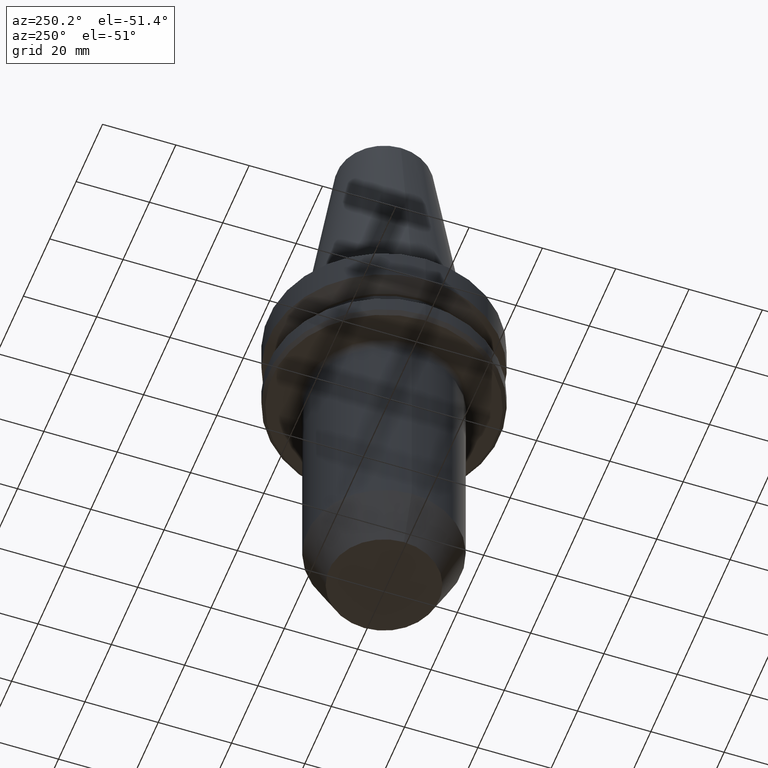
[diagram: clean part render]
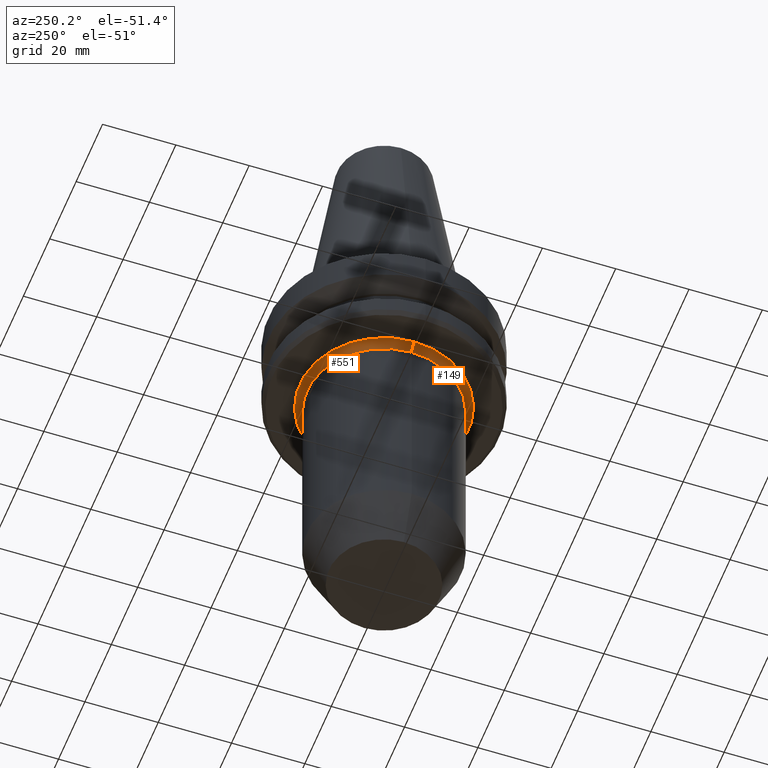
[diagram: same view with one multi-face feature highlighted, each face labeled with its STEP entity id]
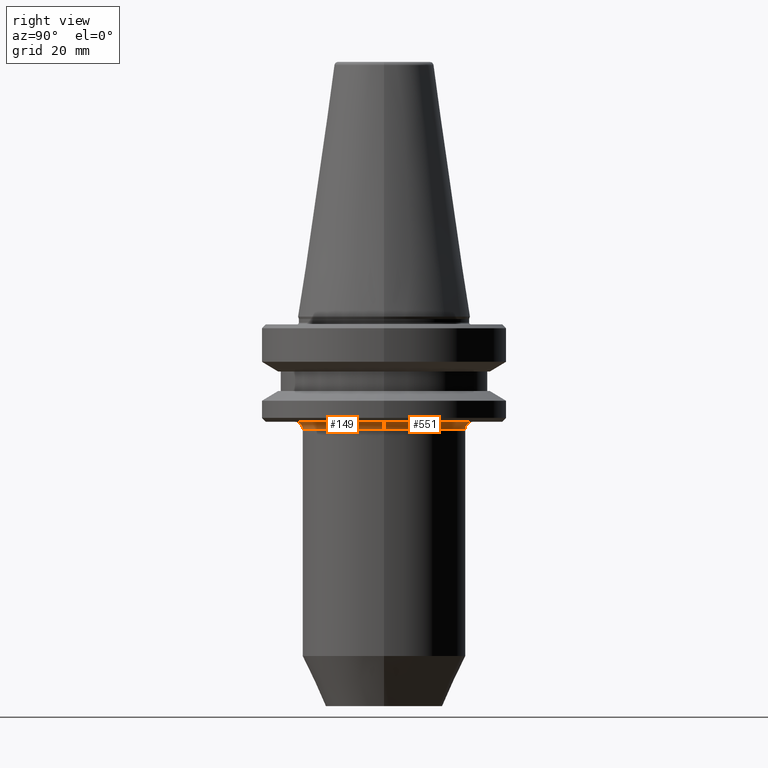
[diagram: same view with one multi-face feature highlighted, each face labeled with its STEP entity id]
A machine part, auxiliary view. The highlighted faces form ONE feature: a constant-radius fillet chain: 2 tangent blend faces with common blend radius 2 mm. The faces share edges in the B-rep.
A second angle (right view) of the same feature is appended — it is thin or edge-on in the first view.
Their STEP definitions:
[1] entity #149 (Torus):
#9 = TOROIDAL_SURFACE ( 'NONE', #510, 22.99999999999835500, 2.000000000000001800 ) ;
#26 = EDGE_CURVE ( 'NONE', #930, #542, #272, .T. ) ;
#70 = ORIENTED_EDGE ( 'NONE', *, *, #26, .T. ) ;
#133 = EDGE_LOOP ( 'NONE', ( #1038, #308, #70, #831 ) ) ;
#134 = CARTESIAN_POINT ( 'NONE',  ( 22.99999999999835500, 0.0000000000000000000, -27.00000000010338400 ) ) ;
#139 = DIRECTION ( 'NONE',  ( 1.000000000000000000, 0.0000000000000000000, 0.0000000000000000000 ) ) ;
#144 = EDGE_CURVE ( 'NONE', #388, #542, #194, .T. ) ;
#149 = ADVANCED_FACE ( 'NONE', ( #634 ), #9, .F. ) ;
#150 = DIRECTION ( 'NONE',  ( -0.0000000000000000000, -0.0000000000000000000, 1.000000000000000000 ) ) ;
#194 = CIRCLE ( 'NONE', #959, 2.000000000000001800 ) ;
#198 = AXIS2_PLACEMENT_3D ( 'NONE', #358, #468, #139 ) ;
#248 = EDGE_CURVE ( 'NONE', #563, #930, #540, .T. ) ;
#272 = CIRCLE ( 'NONE', #546, 20.99999999999835200 ) ;
#308 = ORIENTED_EDGE ( 'NONE', *, *, #248, .T. ) ;
#338 = CARTESIAN_POINT ( 'NONE',  ( 0.0000000000000000000, 0.0000000000000000000, -29.00000000010338800 ) ) ;
#346 = DIRECTION ( 'NONE',  ( -1.000000000000000000, 1.224646799147353500E-016, 0.0000000000000000000 ) ) ;
#352 = AXIS2_PLACEMENT_3D ( 'NONE', #417, #833, #346 ) ;
#358 = CARTESIAN_POINT ( 'NONE',  ( 0.0000000000000000000, 0.0000000000000000000, -27.00000000010338400 ) ) ;
#388 = VERTEX_POINT ( 'NONE', #134 ) ;
#405 = CARTESIAN_POINT ( 'NONE',  ( 22.99999999999835500, 0.0000000000000000000, -29.00000000010338800 ) ) ;
#411 = CARTESIAN_POINT ( 'NONE',  ( 20.99999999999835200, 0.0000000000000000000, -29.00000000010338800 ) ) ;
#415 = CARTESIAN_POINT ( 'NONE',  ( -22.99999999999835500, 2.816687638038710400E-015, -27.00000000010338400 ) ) ;
#417 = CARTESIAN_POINT ( 'NONE',  ( -22.99999999999835500, 2.816687638038710800E-015, -29.00000000010338800 ) ) ;
#436 = DIRECTION ( 'NONE',  ( -0.0000000000000000000, -0.0000000000000000000, 1.000000000000000000 ) ) ;
#468 = DIRECTION ( 'NONE',  ( -0.0000000000000000000, -0.0000000000000000000, 1.000000000000000000 ) ) ;
#510 = AXIS2_PLACEMENT_3D ( 'NONE', #761, #150, #939 ) ;
#540 = CIRCLE ( 'NONE', #352, 2.000000000000001800 ) ;
#542 = VERTEX_POINT ( 'NONE', #411 ) ;
#546 = AXIS2_PLACEMENT_3D ( 'NONE', #338, #436, #710 ) ;
#563 = VERTEX_POINT ( 'NONE', #415 ) ;
#602 = DIRECTION ( 'NONE',  ( 0.0000000000000000000, -1.000000000000000000, 0.0000000000000000000 ) ) ;
#634 = FACE_OUTER_BOUND ( 'NONE', #133, .T. ) ;
#686 = CIRCLE ( 'NONE', #198, 22.99999999999835500 ) ;
#710 = DIRECTION ( 'NONE',  ( 1.000000000000000000, 0.0000000000000000000, 0.0000000000000000000 ) ) ;
#761 = CARTESIAN_POINT ( 'NONE',  ( 0.0000000000000000000, 0.0000000000000000000, -29.00000000010338800 ) ) ;
#831 = ORIENTED_EDGE ( 'NONE', *, *, #144, .F. ) ;
#833 = DIRECTION ( 'NONE',  ( 1.224646799147353200E-016, 1.000000000000000000, 0.0000000000000000000 ) ) ;
#870 = DIRECTION ( 'NONE',  ( 0.0000000000000000000, 0.0000000000000000000, -1.000000000000000000 ) ) ;
#925 = EDGE_CURVE ( 'NONE', #563, #388, #686, .T. ) ;
#928 = CARTESIAN_POINT ( 'NONE',  ( -20.99999999999835200, 2.571758278209240100E-015, -29.00000000010338800 ) ) ;
#930 = VERTEX_POINT ( 'NONE', #928 ) ;
#939 = DIRECTION ( 'NONE',  ( 1.000000000000000000, 0.0000000000000000000, 0.0000000000000000000 ) ) ;
#959 = AXIS2_PLACEMENT_3D ( 'NONE', #405, #602, #870 ) ;
#1038 = ORIENTED_EDGE ( 'NONE', *, *, #925, .F. ) ;
[2] entity #551 (Torus):
#49 = AXIS2_PLACEMENT_3D ( 'NONE', #645, #184, #414 ) ;
#134 = CARTESIAN_POINT ( 'NONE',  ( 22.99999999999835500, 0.0000000000000000000, -27.00000000010338400 ) ) ;
#144 = EDGE_CURVE ( 'NONE', #388, #542, #194, .T. ) ;
#168 = DIRECTION ( 'NONE',  ( 1.000000000000000000, 0.0000000000000000000, 0.0000000000000000000 ) ) ;
#172 = CARTESIAN_POINT ( 'NONE',  ( 0.0000000000000000000, 0.0000000000000000000, -27.00000000010338400 ) ) ;
#184 = DIRECTION ( 'NONE',  ( -0.0000000000000000000, -0.0000000000000000000, 1.000000000000000000 ) ) ;
#194 = CIRCLE ( 'NONE', #959, 2.000000000000001800 ) ;
#223 = AXIS2_PLACEMENT_3D ( 'NONE', #172, #663, #665 ) ;
#248 = EDGE_CURVE ( 'NONE', #563, #930, #540, .T. ) ;
#274 = EDGE_LOOP ( 'NONE', ( #482, #285, #561, #396 ) ) ;
#285 = ORIENTED_EDGE ( 'NONE', *, *, #292, .F. ) ;
#292 = EDGE_CURVE ( 'NONE', #388, #563, #962, .T. ) ;
#294 = TOROIDAL_SURFACE ( 'NONE', #49, 22.99999999999835500, 2.000000000000001800 ) ;
#346 = DIRECTION ( 'NONE',  ( -1.000000000000000000, 1.224646799147353500E-016, 0.0000000000000000000 ) ) ;
#352 = AXIS2_PLACEMENT_3D ( 'NONE', #417, #833, #346 ) ;
#388 = VERTEX_POINT ( 'NONE', #134 ) ;
#393 = CIRCLE ( 'NONE', #506, 20.99999999999835200 ) ;
#396 = ORIENTED_EDGE ( 'NONE', *, *, #713, .T. ) ;
#405 = CARTESIAN_POINT ( 'NONE',  ( 22.99999999999835500, 0.0000000000000000000, -29.00000000010338800 ) ) ;
#411 = CARTESIAN_POINT ( 'NONE',  ( 20.99999999999835200, 0.0000000000000000000, -29.00000000010338800 ) ) ;
#414 = DIRECTION ( 'NONE',  ( 1.000000000000000000, 0.0000000000000000000, 0.0000000000000000000 ) ) ;
#415 = CARTESIAN_POINT ( 'NONE',  ( -22.99999999999835500, 2.816687638038710400E-015, -27.00000000010338400 ) ) ;
#417 = CARTESIAN_POINT ( 'NONE',  ( -22.99999999999835500, 2.816687638038710800E-015, -29.00000000010338800 ) ) ;
#482 = ORIENTED_EDGE ( 'NONE', *, *, #248, .F. ) ;
#506 = AXIS2_PLACEMENT_3D ( 'NONE', #744, #980, #168 ) ;
#540 = CIRCLE ( 'NONE', #352, 2.000000000000001800 ) ;
#542 = VERTEX_POINT ( 'NONE', #411 ) ;
#551 = ADVANCED_FACE ( 'NONE', ( #558 ), #294, .F. ) ;
#558 = FACE_OUTER_BOUND ( 'NONE', #274, .T. ) ;
#561 = ORIENTED_EDGE ( 'NONE', *, *, #144, .T. ) ;
#563 = VERTEX_POINT ( 'NONE', #415 ) ;
#602 = DIRECTION ( 'NONE',  ( 0.0000000000000000000, -1.000000000000000000, 0.0000000000000000000 ) ) ;
#645 = CARTESIAN_POINT ( 'NONE',  ( 0.0000000000000000000, 0.0000000000000000000, -29.00000000010338800 ) ) ;
#663 = DIRECTION ( 'NONE',  ( -0.0000000000000000000, -0.0000000000000000000, 1.000000000000000000 ) ) ;
#665 = DIRECTION ( 'NONE',  ( 1.000000000000000000, 0.0000000000000000000, 0.0000000000000000000 ) ) ;
#713 = EDGE_CURVE ( 'NONE', #542, #930, #393, .T. ) ;
#744 = CARTESIAN_POINT ( 'NONE',  ( 0.0000000000000000000, 0.0000000000000000000, -29.00000000010338800 ) ) ;
#833 = DIRECTION ( 'NONE',  ( 1.224646799147353200E-016, 1.000000000000000000, 0.0000000000000000000 ) ) ;
#870 = DIRECTION ( 'NONE',  ( 0.0000000000000000000, 0.0000000000000000000, -1.000000000000000000 ) ) ;
#928 = CARTESIAN_POINT ( 'NONE',  ( -20.99999999999835200, 2.571758278209240100E-015, -29.00000000010338800 ) ) ;
#930 = VERTEX_POINT ( 'NONE', #928 ) ;
#959 = AXIS2_PLACEMENT_3D ( 'NONE', #405, #602, #870 ) ;
#962 = CIRCLE ( 'NONE', #223, 22.99999999999835500 ) ;
#980 = DIRECTION ( 'NONE',  ( -0.0000000000000000000, -0.0000000000000000000, 1.000000000000000000 ) ) ;